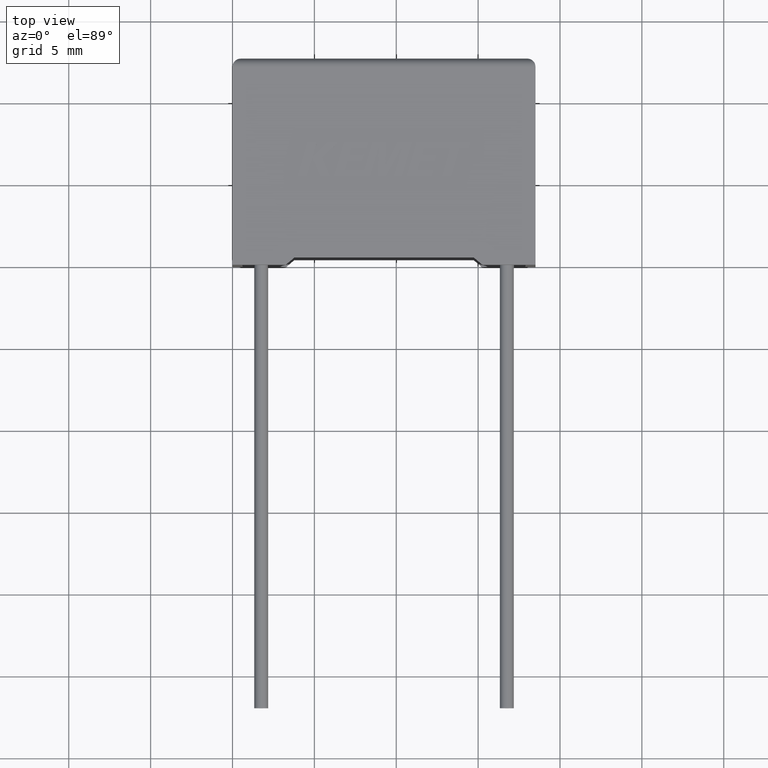
[diagram: clean part render]
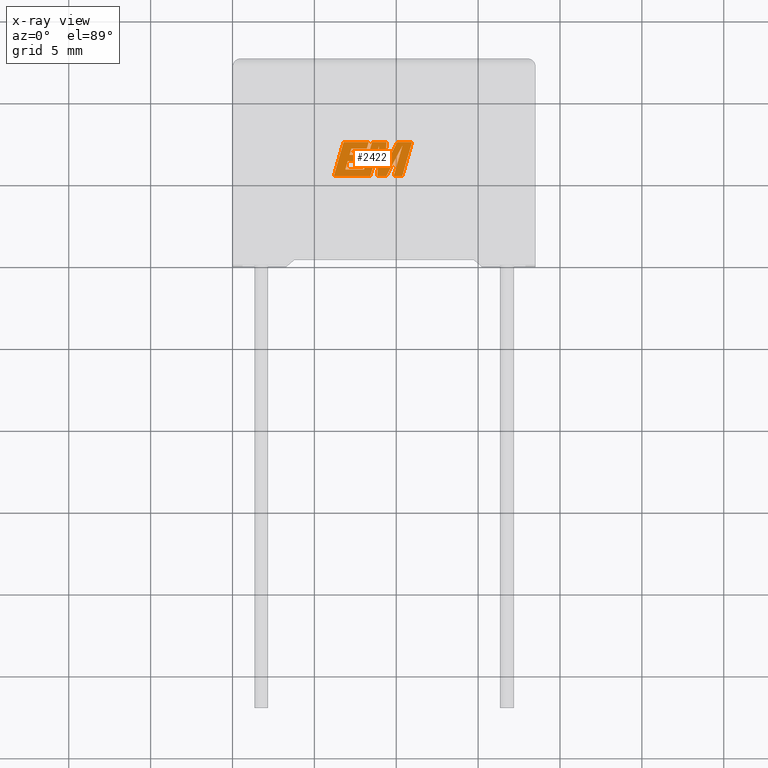
[diagram: x-ray — body ghosted, one internal face saturated and labeled with its STEP entity id]
A machine part, top view, then the same camera in x-ray: the body is ghosted and one INTERNAL B-rep face — a face not visible from any outside direction — is saturated and labeled: STEP entity #2422.
In plain terms, the highlighted planar face has unit normal (0, 0, -1).
Its self-contained STEP definition (entity closure, byte-faithful):
#84 = VERTEX_POINT ( 'NONE', #729 ) ;
#86 = CARTESIAN_POINT ( 'NONE',  ( 8.312977852219651400, 7.493935866030193800, 9.199999999999999300 ) ) ;
#91 = ORIENTED_EDGE ( 'NONE', *, *, #2690, .F. ) ;
#93 = DIRECTION ( 'NONE',  ( -1.000000000000000000, 0.0000000000000000000, 0.0000000000000000000 ) ) ;
#95 = EDGE_CURVE ( 'NONE', #1016, #2652, #3029, .T. ) ;
#97 = CARTESIAN_POINT ( 'NONE',  ( 6.782138541154352200, 7.493935866030193800, 9.199999999999999300 ) ) ;
#118 = LINE ( 'NONE', #806, #1093 ) ;
#143 = VECTOR ( 'NONE', #2057, 1000.000000000000000 ) ;
#150 = LINE ( 'NONE', #2290, #1764 ) ;
#165 = VERTEX_POINT ( 'NONE', #2002 ) ;
#166 = CARTESIAN_POINT ( 'NONE',  ( 10.96548252503405200, 7.493935866030193800, 9.199999999999999300 ) ) ;
#201 = DIRECTION ( 'NONE',  ( -1.000000000000000000, 0.0000000000000000000, 0.0000000000000000000 ) ) ;
#235 = VECTOR ( 'NONE', #1460, 999.9999999999998900 ) ;
#268 = VERTEX_POINT ( 'NONE', #1884 ) ;
#275 = DIRECTION ( 'NONE',  ( -1.000000000000000000, 0.0000000000000000000, 0.0000000000000000000 ) ) ;
#288 = ORIENTED_EDGE ( 'NONE', *, *, #2876, .F. ) ;
#292 = ORIENTED_EDGE ( 'NONE', *, *, #2511, .F. ) ;
#293 = CARTESIAN_POINT ( 'NONE',  ( 10.36972243458141900, 5.421779999999935200, 9.199999999999999300 ) ) ;
#314 = LINE ( 'NONE', #1449, #1061 ) ;
#323 = ORIENTED_EDGE ( 'NONE', *, *, #1770, .F. ) ;
#364 = ORIENTED_EDGE ( 'NONE', *, *, #1870, .F. ) ;
#385 = ORIENTED_EDGE ( 'NONE', *, *, #797, .F. ) ;
#421 = VECTOR ( 'NONE', #2769, 1000.000000000000000 ) ;
#431 = CARTESIAN_POINT ( 'NONE',  ( 6.888675486122422400, 5.816008910486504900, 9.199999999999999300 ) ) ;
#437 = CARTESIAN_POINT ( 'NONE',  ( 7.035416597283856700, 6.331020435863389500, 9.199999999999999300 ) ) ;
#442 = VERTEX_POINT ( 'NONE', #86 ) ;
#455 = CARTESIAN_POINT ( 'NONE',  ( 8.034100434349532800, 6.714090973316060300, 9.199999999999999300 ) ) ;
#499 = LINE ( 'NONE', #2109, #1209 ) ;
#515 = ORIENTED_EDGE ( 'NONE', *, *, #2912, .F. ) ;
#517 = EDGE_CURVE ( 'NONE', #1513, #2852, #1943, .T. ) ;
#529 = CARTESIAN_POINT ( 'NONE',  ( 7.035416597283856700, 6.331020435863389500, 9.199999999999999300 ) ) ;
#536 = VERTEX_POINT ( 'NONE', #166 ) ;
#548 = CARTESIAN_POINT ( 'NONE',  ( 9.396908885299067600, 5.421779999999935200, 9.199999999999999300 ) ) ;
#549 = DIRECTION ( 'NONE',  ( -0.05596501978069369500, -0.9984327301130239100, 0.0000000000000000000 ) ) ;
#633 = CARTESIAN_POINT ( 'NONE',  ( 9.396908885299067600, 5.421779999999935200, 9.199999999999999300 ) ) ;
#642 = VERTEX_POINT ( 'NONE', #1591 ) ;
#647 = EDGE_CURVE ( 'NONE', #992, #1016, #150, .T. ) ;
#706 = DIRECTION ( 'NONE',  ( 1.000000000000000000, 0.0000000000000000000, 0.0000000000000000000 ) ) ;
#729 = CARTESIAN_POINT ( 'NONE',  ( 7.924684112476284300, 6.331020435863389500, 9.199999999999999300 ) ) ;
#733 = ORIENTED_EDGE ( 'NONE', *, *, #2485, .F. ) ;
#765 = VERTEX_POINT ( 'NONE', #1172 ) ;
#777 = DIRECTION ( 'NONE',  ( 0.2793947940878294100, 0.9601763114327593900, 0.0000000000000000000 ) ) ;
#797 = EDGE_CURVE ( 'NONE', #84, #1143, #2527, .T. ) ;
#806 = CARTESIAN_POINT ( 'NONE',  ( 7.144706907039410900, 6.714090973316060300, 9.199999999999999300 ) ) ;
#815 = CARTESIAN_POINT ( 'NONE',  ( 8.519662927806820100, 7.493935866030193800, 9.199999999999999300 ) ) ;
#852 = ORIENTED_EDGE ( 'NONE', *, *, #1282, .F. ) ;
#908 = CARTESIAN_POINT ( 'NONE',  ( 7.256857691868518100, 7.099511636764963100, 9.199999999999999300 ) ) ;
#927 = VECTOR ( 'NONE', #2075, 1000.000000000000000 ) ;
#939 = ORIENTED_EDGE ( 'NONE', *, *, #517, .F. ) ;
#957 = DIRECTION ( 'NONE',  ( 1.000000000000000000, 0.0000000000000000000, 0.0000000000000000000 ) ) ;
#992 = VERTEX_POINT ( 'NONE', #2325 ) ;
#996 = CARTESIAN_POINT ( 'NONE',  ( 9.402120800906617500, 7.493935866030193800, 9.199999999999999300 ) ) ;
#1016 = VERTEX_POINT ( 'NONE', #431 ) ;
#1030 = DIRECTION ( 'NONE',  ( -1.000000000000000000, 0.0000000000000000000, 0.0000000000000000000 ) ) ;
#1061 = VECTOR ( 'NONE', #275, 1000.000000000000000 ) ;
#1075 = VECTOR ( 'NONE', #1757, 1000.000000000000200 ) ;
#1086 = LINE ( 'NONE', #2231, #1308 ) ;
#1092 = VERTEX_POINT ( 'NONE', #1405 ) ;
#1093 = VECTOR ( 'NONE', #777, 1000.000000000000100 ) ;
#1102 = ORIENTED_EDGE ( 'NONE', *, *, #2312, .F. ) ;
#1124 = VECTOR ( 'NONE', #2875, 1000.000000000000200 ) ;
#1143 = VERTEX_POINT ( 'NONE', #455 ) ;
#1172 = CARTESIAN_POINT ( 'NONE',  ( 8.418204269510404500, 5.421779999999935200, 9.199999999999999300 ) ) ;
#1177 = LINE ( 'NONE', #2723, #2348 ) ;
#1209 = VECTOR ( 'NONE', #1730, 1000.000000000000200 ) ;
#1213 = LINE ( 'NONE', #2877, #1922 ) ;
#1248 = VERTEX_POINT ( 'NONE', #2408 ) ;
#1282 = EDGE_CURVE ( 'NONE', #642, #442, #1721, .T. ) ;
#1293 = CARTESIAN_POINT ( 'NONE',  ( 6.185855498748881400, 5.421779999999934300, 9.199999999999999300 ) ) ;
#1294 = LINE ( 'NONE', #293, #2731 ) ;
#1308 = VECTOR ( 'NONE', #1974, 1000.000000000000000 ) ;
#1311 = CARTESIAN_POINT ( 'NONE',  ( 10.05664905549848200, 7.493935866030193800, 9.199999999999999300 ) ) ;
#1342 = DIRECTION ( 'NONE',  ( 1.000000000000000000, 0.0000000000000000000, 0.0000000000000000000 ) ) ;
#1351 = DIRECTION ( 'NONE',  ( -1.000000000000000000, 0.0000000000000000000, 0.0000000000000000000 ) ) ;
#1381 = CARTESIAN_POINT ( 'NONE',  ( 7.924684112476284300, 6.331020435863389500, 9.199999999999999300 ) ) ;
#1400 = CARTESIAN_POINT ( 'NONE',  ( -0.2249154970183449000, -1.285114906891308100, 9.199999999999999300 ) ) ;
#1405 = CARTESIAN_POINT ( 'NONE',  ( 10.05664905549848200, 7.493935866030193800, 9.199999999999999300 ) ) ;
#1439 = CARTESIAN_POINT ( 'NONE',  ( 10.37546858715217500, 7.275449755611401100, 9.199999999999999300 ) ) ;
#1445 = VERTEX_POINT ( 'NONE', #1293 ) ;
#1449 = CARTESIAN_POINT ( 'NONE',  ( 8.312977852219651400, 7.493935866030193800, 9.199999999999999300 ) ) ;
#1450 = EDGE_CURVE ( 'NONE', #1445, #765, #2228, .T. ) ;
#1457 = VERTEX_POINT ( 'NONE', #2496 ) ;
#1460 = DIRECTION ( 'NONE',  ( -0.2760118818968581000, -0.9611542233438684600, 0.0000000000000000000 ) ) ;
#1469 = CARTESIAN_POINT ( 'NONE',  ( 7.256857691868518100, 7.099511636764963100, 9.199999999999999300 ) ) ;
#1482 = ORIENTED_EDGE ( 'NONE', *, *, #2008, .F. ) ;
#1513 = VERTEX_POINT ( 'NONE', #548 ) ;
#1526 = CARTESIAN_POINT ( 'NONE',  ( 8.200953079508124700, 7.099511636764963100, 9.199999999999999300 ) ) ;
#1582 = ORIENTED_EDGE ( 'NONE', *, *, #2997, .F. ) ;
#1591 = CARTESIAN_POINT ( 'NONE',  ( 8.200953079508124700, 7.099511636764963100, 9.199999999999999300 ) ) ;
#1598 = ORIENTED_EDGE ( 'NONE', *, *, #647, .F. ) ;
#1620 = LINE ( 'NONE', #2540, #421 ) ;
#1632 = VECTOR ( 'NONE', #706, 1000.000000000000000 ) ;
#1659 = ORIENTED_EDGE ( 'NONE', *, *, #1450, .F. ) ;
#1710 = CARTESIAN_POINT ( 'NONE',  ( 6.888675486122422400, 5.816008910486504900, 9.199999999999999300 ) ) ;
#1721 = LINE ( 'NONE', #1526, #1075 ) ;
#1723 = ORIENTED_EDGE ( 'NONE', *, *, #95, .F. ) ;
#1730 = DIRECTION ( 'NONE',  ( -0.2762517575166416600, -0.9610853065513833600, 0.0000000000000000000 ) ) ;
#1734 = CARTESIAN_POINT ( 'NONE',  ( 8.049366800760472200, 5.421779999999935200, 9.199999999999999300 ) ) ;
#1739 = VECTOR ( 'NONE', #2688, 1000.000000000000000 ) ;
#1751 = LINE ( 'NONE', #437, #1632 ) ;
#1757 = DIRECTION ( 'NONE',  ( 0.2732148821746286400, 0.9619530280415482500, 0.0000000000000000000 ) ) ;
#1764 = VECTOR ( 'NONE', #1351, 1000.000000000000000 ) ;
#1770 = EDGE_CURVE ( 'NONE', #1248, #2705, #2806, .T. ) ;
#1775 = VERTEX_POINT ( 'NONE', #97 ) ;
#1782 = LINE ( 'NONE', #2671, #2794 ) ;
#1795 = VERTEX_POINT ( 'NONE', #1469 ) ;
#1808 = DIRECTION ( 'NONE',  ( 0.2763139702539113600, 0.9610674221107073900, 0.0000000000000000000 ) ) ;
#1841 = ORIENTED_EDGE ( 'NONE', *, *, #1948, .F. ) ;
#1870 = EDGE_CURVE ( 'NONE', #2652, #84, #1751, .T. ) ;
#1877 = VECTOR ( 'NONE', #2734, 1000.000000000000200 ) ;
#1884 = CARTESIAN_POINT ( 'NONE',  ( 9.843155598002916000, 5.421779999999935200, 9.199999999999999300 ) ) ;
#1903 = VECTOR ( 'NONE', #1342, 1000.000000000000000 ) ;
#1922 = VECTOR ( 'NONE', #1030, 1000.000000000000000 ) ;
#1935 = EDGE_LOOP ( 'NONE', ( #1102, #1841, #515, #292, #939, #1582, #2487, #2113, #1659, #2941, #2816, #852, #1482, #1959, #733, #385, #364, #1723, #1598, #91, #288, #323, #2209 ) ) ;
#1943 = LINE ( 'NONE', #633, #143 ) ;
#1948 = EDGE_CURVE ( 'NONE', #2750, #536, #1294, .T. ) ;
#1959 = ORIENTED_EDGE ( 'NONE', *, *, #3013, .F. ) ;
#1974 = DIRECTION ( 'NONE',  ( -1.000000000000000000, 0.0000000000000000000, 0.0000000000000000000 ) ) ;
#2002 = CARTESIAN_POINT ( 'NONE',  ( 7.144706907039410900, 6.714090973316060300, 9.199999999999999300 ) ) ;
#2008 = EDGE_CURVE ( 'NONE', #1795, #642, #2978, .T. ) ;
#2036 = VECTOR ( 'NONE', #957, 1000.000000000000000 ) ;
#2046 = CARTESIAN_POINT ( 'NONE',  ( 8.844490662757399600, 5.421779999999935200, 9.199999999999999300 ) ) ;
#2057 = DIRECTION ( 'NONE',  ( 0.4668459304955080400, 0.8843386665637680300, 0.0000000000000000000 ) ) ;
#2075 = DIRECTION ( 'NONE',  ( 0.2746459304916892800, 0.9615454294334481200, 0.0000000000000000000 ) ) ;
#2109 = CARTESIAN_POINT ( 'NONE',  ( 8.519662927806820100, 7.493935866030193800, 9.199999999999999300 ) ) ;
#2113 = ORIENTED_EDGE ( 'NONE', *, *, #2232, .F. ) ;
#2155 = CARTESIAN_POINT ( 'NONE',  ( 10.36972243458141900, 5.421779999999935200, 9.199999999999999300 ) ) ;
#2174 = FACE_OUTER_BOUND ( 'NONE', #1935, .T. ) ;
#2209 = ORIENTED_EDGE ( 'NONE', *, *, #3023, .F. ) ;
#2228 = LINE ( 'NONE', #1734, #1903 ) ;
#2231 = CARTESIAN_POINT ( 'NONE',  ( 10.96548252503405200, 7.493935866030193800, 9.199999999999999300 ) ) ;
#2232 = EDGE_CURVE ( 'NONE', #765, #1457, #2427, .T. ) ;
#2283 = LINE ( 'NONE', #2046, #1739 ) ;
#2290 = CARTESIAN_POINT ( 'NONE',  ( 8.037364148194056300, 5.816008910486504900, 9.199999999999999300 ) ) ;
#2312 = EDGE_CURVE ( 'NONE', #536, #1092, #1086, .T. ) ;
#2325 = CARTESIAN_POINT ( 'NONE',  ( 8.037364148194056300, 5.816008910486504900, 9.199999999999999300 ) ) ;
#2348 = VECTOR ( 'NONE', #93, 1000.000000000000000 ) ;
#2367 = EDGE_CURVE ( 'NONE', #1775, #1445, #2862, .T. ) ;
#2373 = DIRECTION ( 'NONE',  ( 0.0000000000000000000, 0.0000000000000000000, -1.000000000000000000 ) ) ;
#2406 = AXIS2_PLACEMENT_3D ( 'NONE', #1400, #2373, #201 ) ;
#2408 = CARTESIAN_POINT ( 'NONE',  ( 9.322431611630664200, 6.013561091401876400, 9.199999999999999300 ) ) ;
#2422 = ADVANCED_FACE ( 'NONE', ( #2174 ), #2812, .T. ) ;
#2424 = VECTOR ( 'NONE', #2639, 1000.000000000000100 ) ;
#2427 = LINE ( 'NONE', #2645, #1124 ) ;
#2433 = CARTESIAN_POINT ( 'NONE',  ( 6.782138541154352200, 7.493935866030193800, 9.199999999999999300 ) ) ;
#2466 = CARTESIAN_POINT ( 'NONE',  ( 9.322431611630664200, 6.013561091401876400, 9.199999999999999300 ) ) ;
#2484 = VECTOR ( 'NONE', #2929, 1000.000000000000100 ) ;
#2485 = EDGE_CURVE ( 'NONE', #1143, #165, #1213, .T. ) ;
#2487 = ORIENTED_EDGE ( 'NONE', *, *, #2602, .F. ) ;
#2496 = CARTESIAN_POINT ( 'NONE',  ( 8.947896206610497700, 7.266565901311937000, 9.199999999999999300 ) ) ;
#2506 = CARTESIAN_POINT ( 'NONE',  ( 10.37546858715217500, 7.275449755611401100, 9.199999999999999300 ) ) ;
#2511 = EDGE_CURVE ( 'NONE', #2852, #268, #2905, .T. ) ;
#2527 = LINE ( 'NONE', #1381, #927 ) ;
#2537 = VERTEX_POINT ( 'NONE', #815 ) ;
#2540 = CARTESIAN_POINT ( 'NONE',  ( 9.843155598002916000, 5.421779999999935200, 9.199999999999999300 ) ) ;
#2556 = VERTEX_POINT ( 'NONE', #2945 ) ;
#2602 = EDGE_CURVE ( 'NONE', #1457, #2556, #1782, .T. ) ;
#2639 = DIRECTION ( 'NONE',  ( 0.2740217765954066100, 0.9617234872620595800, 0.0000000000000000000 ) ) ;
#2645 = CARTESIAN_POINT ( 'NONE',  ( 8.418204269510404500, 5.421779999999935200, 9.199999999999999300 ) ) ;
#2652 = VERTEX_POINT ( 'NONE', #529 ) ;
#2653 = LINE ( 'NONE', #1311, #1877 ) ;
#2662 = DIRECTION ( 'NONE',  ( -0.2765379750249963300, -0.9610029908221277000, 0.0000000000000000000 ) ) ;
#2666 = EDGE_CURVE ( 'NONE', #442, #1775, #314, .T. ) ;
#2671 = CARTESIAN_POINT ( 'NONE',  ( 8.947896206610497700, 7.266565901311937000, 9.199999999999999300 ) ) ;
#2688 = DIRECTION ( 'NONE',  ( 1.000000000000000000, 0.0000000000000000000, 0.0000000000000000000 ) ) ;
#2690 = EDGE_CURVE ( 'NONE', #2537, #992, #499, .T. ) ;
#2705 = VERTEX_POINT ( 'NONE', #996 ) ;
#2723 = CARTESIAN_POINT ( 'NONE',  ( 9.402120800906617500, 7.493935866030193800, 9.199999999999999300 ) ) ;
#2731 = VECTOR ( 'NONE', #1808, 1000.000000000000000 ) ;
#2734 = DIRECTION ( 'NONE',  ( -0.4443210308329518200, -0.8958676361826801700, 0.0000000000000000000 ) ) ;
#2750 = VERTEX_POINT ( 'NONE', #2155 ) ;
#2769 = DIRECTION ( 'NONE',  ( 1.000000000000000000, 0.0000000000000000000, 0.0000000000000000000 ) ) ;
#2794 = VECTOR ( 'NONE', #549, 1000.000000000000100 ) ;
#2806 = LINE ( 'NONE', #2466, #2484 ) ;
#2812 = PLANE ( 'NONE',  #2406 ) ;
#2816 = ORIENTED_EDGE ( 'NONE', *, *, #2666, .F. ) ;
#2852 = VERTEX_POINT ( 'NONE', #2506 ) ;
#2862 = LINE ( 'NONE', #2433, #2931 ) ;
#2875 = DIRECTION ( 'NONE',  ( 0.2759782365590697200, 0.9611638845408965200, 0.0000000000000000000 ) ) ;
#2876 = EDGE_CURVE ( 'NONE', #2705, #2537, #1177, .T. ) ;
#2877 = CARTESIAN_POINT ( 'NONE',  ( 8.034100434349532800, 6.714090973316060300, 9.199999999999999300 ) ) ;
#2905 = LINE ( 'NONE', #1439, #235 ) ;
#2912 = EDGE_CURVE ( 'NONE', #268, #2750, #1620, .T. ) ;
#2929 = DIRECTION ( 'NONE',  ( 0.05375259206908576000, 0.9985542843760946100, 0.0000000000000000000 ) ) ;
#2931 = VECTOR ( 'NONE', #2662, 1000.000000000000100 ) ;
#2941 = ORIENTED_EDGE ( 'NONE', *, *, #2367, .F. ) ;
#2945 = CARTESIAN_POINT ( 'NONE',  ( 8.844490662757399600, 5.421779999999935200, 9.199999999999999300 ) ) ;
#2978 = LINE ( 'NONE', #908, #2036 ) ;
#2997 = EDGE_CURVE ( 'NONE', #2556, #1513, #2283, .T. ) ;
#3013 = EDGE_CURVE ( 'NONE', #165, #1795, #118, .T. ) ;
#3023 = EDGE_CURVE ( 'NONE', #1092, #1248, #2653, .T. ) ;
#3029 = LINE ( 'NONE', #1710, #2424 ) ;